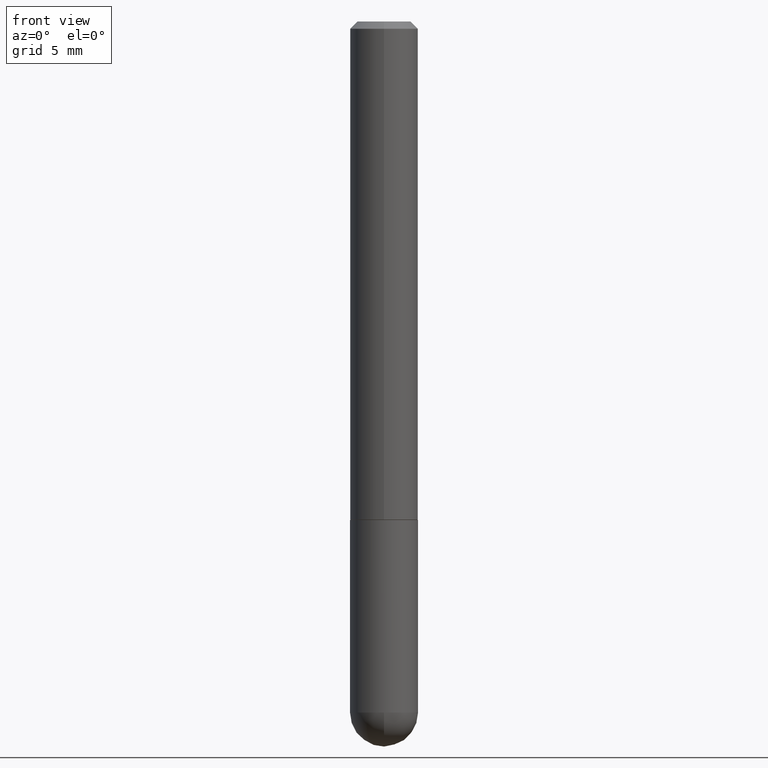
[diagram: clean part render]
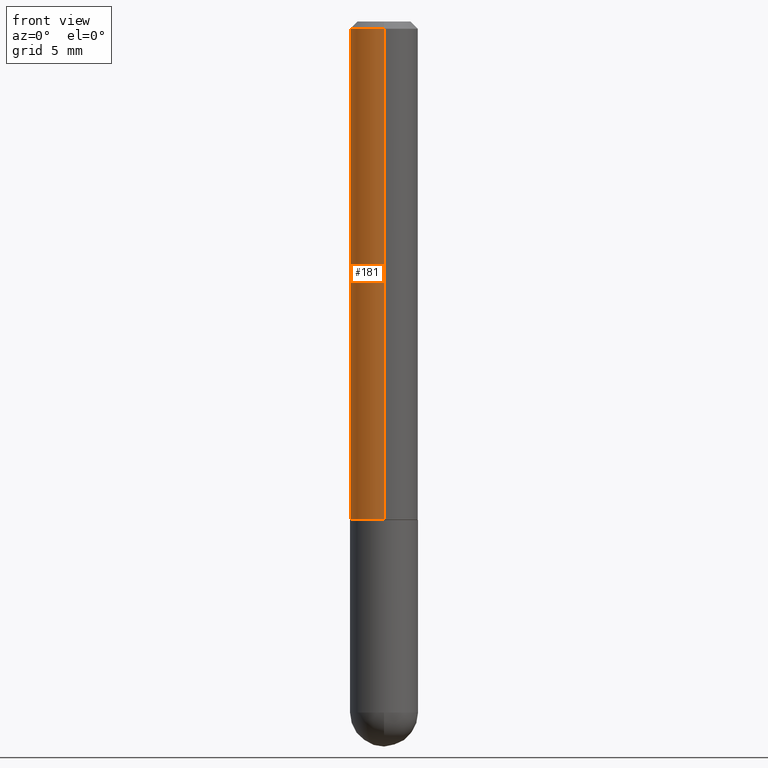
[diagram: same view with one face highlighted and labeled with its STEP entity id]
A machine part, front view. The second image highlights one B-rep face of the part: STEP entity #181.
In plain terms, the highlighted cylindrical surface (edge-blend (fillet) strip) has radius 2.3813 mm, axis along (-0, 0, 1).
Its self-contained STEP definition (entity closure, byte-faithful):
#5 = DIRECTION ( 'NONE',  ( -2.444797333483953649E-29, 3.492442925969092226E-15, 1.000000000000000000 ) ) ;
#15 = ORIENTED_EDGE ( 'NONE', *, *, #326, .T. ) ;
#33 = CARTESIAN_POINT ( 'NONE',  ( 6.546527510330878985E-16, 0.09374999999999991673, -0.02000000000000034736 ) ) ;
#37 = AXIS2_PLACEMENT_3D ( 'NONE', #251, #93, #215 ) ;
#54 = CIRCLE ( 'NONE', #299, 0.09375000000000019429 ) ;
#70 = CARTESIAN_POINT ( 'NONE',  ( 4.889594666967911153E-31, -6.984885851938190023E-17, -0.02000000000000001776 ) ) ;
#71 = CARTESIAN_POINT ( 'NONE',  ( 6.661338147750944173E-16, 0.09375000000000009714, -3.274165243096026796E-16 ) ) ;
#77 = EDGE_LOOP ( 'NONE', ( #142, #15, #296, #144 ) ) ;
#92 = CARTESIAN_POINT ( 'NONE',  ( -6.431716872910804923E-16, -0.09375000000000005551, -0.01999999999999968817 ) ) ;
#93 = DIRECTION ( 'NONE',  ( -2.444797333483953649E-29, 3.492442925969092226E-15, 1.000000000000000000 ) ) ;
#104 = CARTESIAN_POINT ( 'NONE',  ( 3.359151536206952494E-29, -4.798616580281532316E-15, -1.373999999999999888 ) ) ;
#114 = VERTEX_POINT ( 'NONE', #315 ) ;
#126 = CYLINDRICAL_SURFACE ( 'NONE', #37, 0.09375000000000009714 ) ;
#142 = ORIENTED_EDGE ( 'NONE', *, *, #232, .F. ) ;
#144 = ORIENTED_EDGE ( 'NONE', *, *, #254, .F. ) ;
#154 = CIRCLE ( 'NONE', #201, 0.09374999999999998612 ) ;
#159 = EDGE_CURVE ( 'NONE', #114, #167, #346, .T. ) ;
#163 = DIRECTION ( 'NONE',  ( -2.444797333483953649E-29, 3.492442925969092226E-15, 1.000000000000000000 ) ) ;
#167 = VERTEX_POINT ( 'NONE', #92 ) ;
#180 = CARTESIAN_POINT ( 'NONE',  ( -6.546527510330880958E-16, -0.09375000000000009714, 3.274165243096026796E-16 ) ) ;
#181 = ADVANCED_FACE ( 'NONE', ( #284 ), #126, .T. ) ;
#201 = AXIS2_PLACEMENT_3D ( 'NONE', #70, #163, #263 ) ;
#215 = DIRECTION ( 'NONE',  ( -6.982962677686265922E-15, -1.000000000000000000, 3.492442925969091437E-15 ) ) ;
#222 = DIRECTION ( 'NONE',  ( -2.444797333483953649E-29, 3.492442925969092620E-15, 1.000000000000000000 ) ) ;
#232 = EDGE_CURVE ( 'NONE', #303, #244, #352, .T. ) ;
#244 = VERTEX_POINT ( 'NONE', #33 ) ;
#251 = CARTESIAN_POINT ( 'NONE',  ( 0.000000000000000000, 0.000000000000000000, 0.000000000000000000 ) ) ;
#254 = EDGE_CURVE ( 'NONE', #244, #167, #154, .T. ) ;
#263 = DIRECTION ( 'NONE',  ( -6.982962677686266711E-15, -1.000000000000000000, 3.505871591869138487E-15 ) ) ;
#279 = VECTOR ( 'NONE', #378, 39.37007874015748143 ) ;
#284 = FACE_OUTER_BOUND ( 'NONE', #77, .T. ) ;
#296 = ORIENTED_EDGE ( 'NONE', *, *, #159, .T. ) ;
#299 = AXIS2_PLACEMENT_3D ( 'NONE', #104, #5, #389 ) ;
#303 = VERTEX_POINT ( 'NONE', #410 ) ;
#315 = CARTESIAN_POINT ( 'NONE',  ( -6.546527510330552594E-16, -0.09375000000000499600, -1.373999999999999666 ) ) ;
#326 = EDGE_CURVE ( 'NONE', #303, #114, #54, .T. ) ;
#346 = LINE ( 'NONE', #180, #279 ) ;
#352 = LINE ( 'NONE', #71, #391 ) ;
#378 = DIRECTION ( 'NONE',  ( -2.444797333483953649E-29, 3.492442925969092620E-15, 1.000000000000000000 ) ) ;
#389 = DIRECTION ( 'NONE',  ( -6.982962677686266711E-15, -1.000000000000000000, 2.913971193241874850E-15 ) ) ;
#391 = VECTOR ( 'NONE', #222, 39.37007874015748143 ) ;
#410 = CARTESIAN_POINT ( 'NONE',  ( 6.661338147751117722E-16, 0.09374999999999537870, -1.374000000000000110 ) ) ;